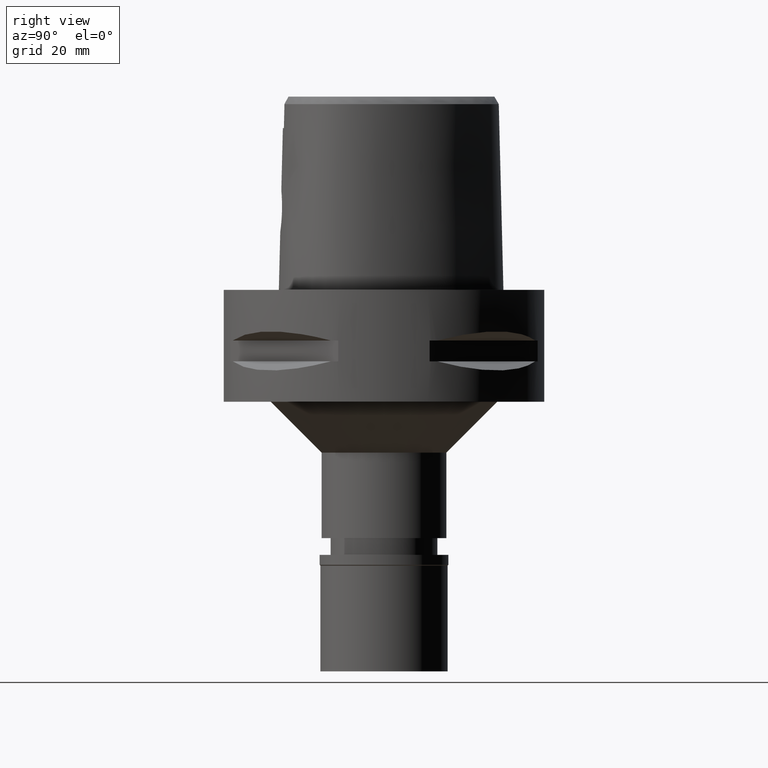
[diagram: clean part render]
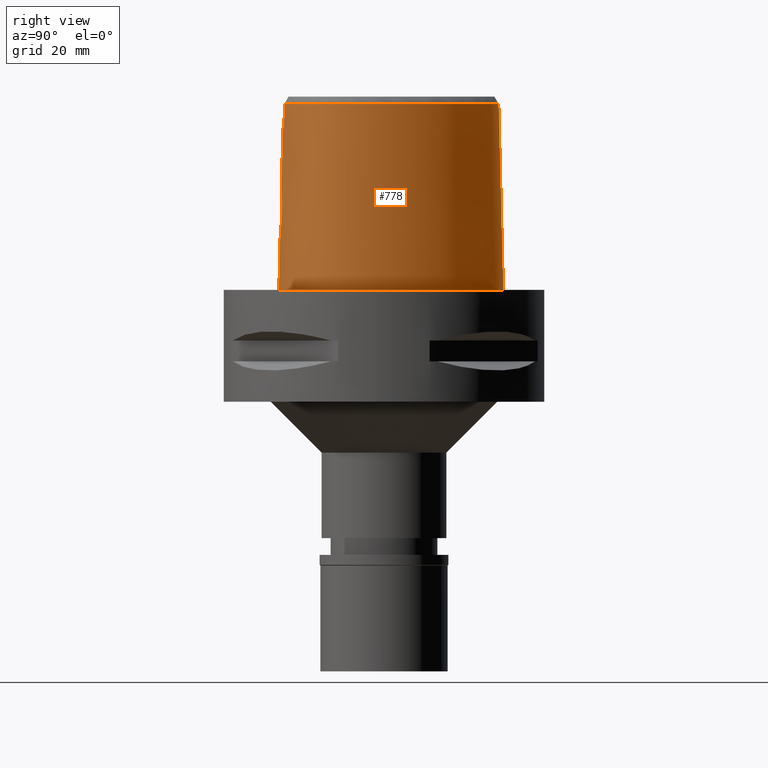
[diagram: same view with one face highlighted and labeled with its STEP entity id]
A machine part, right view. The second image highlights one B-rep face of the part: STEP entity #778.
In plain terms, the highlighted face is a freeform B-spline surface patch.
Its self-contained STEP definition (entity closure, byte-faithful):
#2 = CARTESIAN_POINT ( 'NONE',  ( 6.344715576767000265, -20.31619965005999973, -0.7304376953258999716 ) ) ;
#10 = CARTESIAN_POINT ( 'NONE',  ( 1.557939113252474250, -20.15943274952388009, 19.23835935338053815 ) ) ;
#28 = CARTESIAN_POINT ( 'NONE',  ( 16.38077687015999828, -14.94316453313000004, 37.25232246162000393 ) ) ;
#34 = CARTESIAN_POINT ( 'NONE',  ( 20.09619608768439392, -10.23243839429969526, 36.52186680739944080 ) ) ;
#52 = CARTESIAN_POINT ( 'NONE',  ( -1.460227875973999874E-11, 22.56201468012000078, 36.52186680743999858 ) ) ;
#73 = CARTESIAN_POINT ( 'NONE',  ( -0.4561077449807999784, -20.69106755660000019, -0.7304376953258999716 ) ) ;
#102 = CARTESIAN_POINT ( 'NONE',  ( 11.02138180927000022, -18.31230456260999873, 24.59140240929999877 ) ) ;
#109 = CARTESIAN_POINT ( 'NONE',  ( 3.637738219117000238, -19.56971420299000286, 36.52185956443999970 ) ) ;
#112 = B_SPLINE_CURVE_WITH_KNOTS ( 'NONE', 3,
 ( #2759, #2400, #151, #1654 ),
 .UNSPECIFIED., .F., .F.,
 ( 4, 4 ),
 ( 0.0000000000000000000, 1.000000000000000000 ),
 .UNSPECIFIED. ) ;
#122 = CARTESIAN_POINT ( 'NONE',  ( 19.15132523108999862, -12.46323150217999931, 24.59140240929999877 ) ) ;
#129 = CARTESIAN_POINT ( 'NONE',  ( 4.467522181837084716, -19.48130276147729845, 36.52186680739944080 ) ) ;
#136 = VERTEX_POINT ( 'NONE', #4514 ) ;
#151 = CARTESIAN_POINT ( 'NONE',  ( 3.671249151389730514, -19.60525176641679579, 34.94790639287000289 ) ) ;
#157 = CARTESIAN_POINT ( 'NONE',  ( 1.484600096012577142, -20.35045464633572720, 11.73184683410411999 ) ) ;
#163 = B_SPLINE_CURVE_WITH_KNOTS ( 'NONE', 3,
 ( #52, #3427, #1163, #4579, #1190, #3373, #4170, #2299, #3773, #1579, #815, #1978, #3790, #34, #3842, #1949, #420, #3456, #1921, #499, #442, #129, #109 ),
 .UNSPECIFIED., .F., .F.,
 ( 4, 1, 1, 1, 1, 1, 1, 1, 1, 1, 1, 1, 1, 1, 1, 1, 1, 1, 1, 1, 4 ),
 ( 0.0000000000000000000, 0.04382683003322416365, 0.08765366006602745563, 0.1314804900989360870, 0.1753073201318447183, 0.2629609801974513994, 0.3506146402631634684, 0.4382683003288753709, 0.5259219603945873844, 0.5697487904274959325, 0.6135756204601940933, 0.6574024504931027524, 0.6793158655095044018, 0.7012292805260113004, 0.7231426955424129499, 0.7450561105588145994, 0.7888829405916181203, 0.8327097706245266684, 0.8765366006573300783, 0.9641902607230630196, 1.000000000000000000 ),
 .UNSPECIFIED. ) ;
#181 = EDGE_LOOP ( 'NONE', ( #3538, #3285, #2152, #941, #504, #2780, #1633, #1586 ) ) ;
#222 = CARTESIAN_POINT ( 'NONE',  ( 0.5088194012091731278, -20.38532945290524268, 11.47346778294853387 ) ) ;
#249 = CARTESIAN_POINT ( 'NONE',  ( 1.428692070689411064, -20.35332336958851229, 11.71009346828414088 ) ) ;
#271 = CARTESIAN_POINT ( 'NONE',  ( 7.420053136274999517, 21.05635745033000106, 11.93048235699000159 ) ) ;
#275 = CARTESIAN_POINT ( 'NONE',  ( 3.015809322517585933, -20.08990163912825011, 18.20349211806708567 ) ) ;
#293 = CARTESIAN_POINT ( 'NONE',  ( 5.105252916250999640, 22.54305024276000324, -0.7304376953258999716 ) ) ;
#296 = CARTESIAN_POINT ( 'NONE',  ( 2.929181525109338491, -20.09491214275074711, 18.29697834040602800 ) ) ;
#317 = CARTESIAN_POINT ( 'NONE',  ( 21.99640701633999740, -0.2778990161574000362, -0.7304376953258999716 ) ) ;
#320 = CARTESIAN_POINT ( 'NONE',  ( 4.050935686876551145, -20.04627205849230975, 15.73951138876112843 ) ) ;
#328 = EDGE_CURVE ( 'NONE', #136, #913, #4197, .T. ) ;
#342 = CARTESIAN_POINT ( 'NONE',  ( -0.4685451965069000191, 23.16976073971000005, 11.93048235699000159 ) ) ;
#345 = CARTESIAN_POINT ( 'NONE',  ( 0.4958974861579462656, -20.18628283969000492, 19.55000000000000071 ) ) ;
#356 = CARTESIAN_POINT ( 'NONE',  ( 18.56841065047636619, -14.16937988191942743, 5.135697691226702444E-08 ) ) ;
#362 = CARTESIAN_POINT ( 'NONE',  ( -0.6840631436367000662, -20.68668116430000126, -0.7304376953258999716 ) ) ;
#365 = CARTESIAN_POINT ( 'NONE',  ( 21.44619295098000222, -6.759806553437999632, 24.59140240929999877 ) ) ;
#368 = CARTESIAN_POINT ( 'NONE',  ( 2.904942417684661216, -20.09630691081018483, 18.32205322623401855 ) ) ;
#386 = CARTESIAN_POINT ( 'NONE',  ( 14.21104795738999904, -16.40237698741999850, 37.25232246162000393 ) ) ;
#406 = CARTESIAN_POINT ( 'NONE',  ( 10.74572890976351580, 19.17433593650829593, 5.135697691226702444E-08 ) ) ;
#420 = CARTESIAN_POINT ( 'NONE',  ( 17.90324024157302318, -13.53935104435921843, 36.52186680739944080 ) ) ;
#429 = DIRECTION ( 'NONE',  ( 2.246877879688959938E-12, 0.02499051290944955331, -0.9996876883629820520 ) ) ;
#434 = CARTESIAN_POINT ( 'NONE',  ( 6.232237581529000536, -19.68961178150000180, 24.59140240929999877 ) ) ;
#442 = CARTESIAN_POINT ( 'NONE',  ( 7.300578979384798828, -19.07170738131011589, 36.52186680739944080 ) ) ;
#465 = CARTESIAN_POINT ( 'NONE',  ( -0.6718836836686000735, -20.05378850681999836, 24.59140240929999877 ) ) ;
#473 = CARTESIAN_POINT ( 'NONE',  ( -1.826892150965000023E-12, -20.38876923348000147, 11.44999999999999929 ) ) ;
#492 = CARTESIAN_POINT ( 'NONE',  ( 19.40779768883000145, -12.64961927457000179, 11.93048235699000159 ) ) ;
#499 = CARTESIAN_POINT ( 'NONE',  ( 10.91891095221506625, -18.03046396093020576, 36.52186680739944080 ) ) ;
#504 = ORIENTED_EDGE ( 'NONE', *, *, #1228, .T. ) ;
#572 = CARTESIAN_POINT ( 'NONE',  ( 1.026261138469873435, -20.37071038546249468, 11.57986899346372489 ) ) ;
#621 = CARTESIAN_POINT ( 'NONE',  ( 2.841460078676028900, -20.24471727788639441, 12.61406340613760335 ) ) ;
#631 = EDGE_CURVE ( 'NONE', #901, #3017, #112, .T. ) ;
#642 = CARTESIAN_POINT ( 'NONE',  ( 14.17879758744999918, 15.44741195459000060, 11.93048235699000159 ) ) ;
#645 = CARTESIAN_POINT ( 'NONE',  ( 3.139830787395406997, -20.08266621005894947, 18.05916603676346810 ) ) ;
#665 = CARTESIAN_POINT ( 'NONE',  ( 7.580410840355000346, 21.33037926323999756, -0.7304376953258999716 ) ) ;
#668 = CARTESIAN_POINT ( 'NONE',  ( 4.047740518681369970, -20.05617978811941526, 15.36123182186297598 ) ) ;
#689 = CARTESIAN_POINT ( 'NONE',  ( 22.07548129151000182, -6.850245535541000130, -0.7304376953258999716 ) ) ;
#692 = CARTESIAN_POINT ( 'NONE',  ( 3.865156686570976774, -20.04312372711440560, 16.71143719688340212 ) ) ;
#703 = CARTESIAN_POINT ( 'NONE',  ( 21.97832647659740246, -0.2810937502246462771, 5.135697691226702444E-08 ) ) ;
#714 = CARTESIAN_POINT ( 'NONE',  ( 4.987110667480000537, 22.24795280576000067, 11.93048235699000159 ) ) ;
#717 = CARTESIAN_POINT ( 'NONE',  ( 1.559195749211667481, -20.15938971546183112, 19.23783485783959790 ) ) ;
#737 = CARTESIAN_POINT ( 'NONE',  ( 2.373090302915000116, 22.37624340105999821, 37.25232246162000393 ) ) ;
#740 = CARTESIAN_POINT ( 'NONE',  ( 4.044187948281894762, -20.05896612332343310, 15.26787681282638154 ) ) ;
#750 = CARTESIAN_POINT ( 'NONE',  ( 7.571159433699917507, 21.31457031138365821, 5.135697691226702444E-08 ) ) ;
#778 = ADVANCED_FACE ( 'NONE', ( #4570 ), #2118, .T. ) ;
#789 = VERTEX_POINT ( 'NONE', #1918 ) ;
#800 = CARTESIAN_POINT ( 'NONE',  ( -1.465426168665000322E-11, -20.67499999999999716, 1.614634352146999882E-13 ) ) ;
#815 = CARTESIAN_POINT ( 'NONE',  ( 21.32871516739782436, -4.105831245034658572, 36.52186680739944080 ) ) ;
#859 = CARTESIAN_POINT ( 'NONE',  ( -0.6779734136527000299, -20.37023483556000159, 11.93048235699000159 ) ) ;
#901 = VERTEX_POINT ( 'NONE', #3042 ) ;
#913 = VERTEX_POINT ( 'NONE', #4573 ) ;
#941 = ORIENTED_EDGE ( 'NONE', *, *, #4528, .T. ) ;
#956 = CARTESIAN_POINT ( 'NONE',  ( 2.041042029990999821E-08, -19.88004246002000031, 31.80000004972000127 ) ) ;
#961 = CARTESIAN_POINT ( 'NONE',  ( 1.943612297387321997, -20.32333583516805930, 11.93698920895282534 ) ) ;
#985 = VERTEX_POINT ( 'NONE', #1210 ) ;
#1007 = CARTESIAN_POINT ( 'NONE',  ( 13.69241972168999943, 15.03666385820999984, 37.25232246162000393 ) ) ;
#1011 = CARTESIAN_POINT ( 'NONE',  ( 2.894451003923534937, -20.09690977045361038, 18.33278634657026629 ) ) ;
#1028 = CARTESIAN_POINT ( 'NONE',  ( 6.838580005282262249E-09, -20.08420636276266080, 23.63333344114145262 ) ) ;
#1032 = CARTESIAN_POINT ( 'NONE',  ( 21.05621901581999822, -0.4440251759740000415, 37.25232246162000393 ) ) ;
#1035 = CARTESIAN_POINT ( 'NONE',  ( 2.976701638823386009, -20.09217022439938205, 18.24671788373807502 ) ) ;
#1057 = CARTESIAN_POINT ( 'NONE',  ( 0.5826623285267998886, 22.88447438859000016, 24.59140240929999877 ) ) ;
#1060 = CARTESIAN_POINT ( 'NONE',  ( 3.724716690411025155, -20.12893075005228738, 13.90968743133232799 ) ) ;
#1084 = CARTESIAN_POINT ( 'NONE',  ( -0.7217521647947000574, 23.47150798736000255, -0.7304376953258999716 ) ) ;
#1087 = CARTESIAN_POINT ( 'NONE',  ( 3.752083122851463060, -20.04764660390417319, 17.02460302106401002 ) ) ;
#1101 = CARTESIAN_POINT ( 'NONE',  ( 16.95889172513586374, -15.67838867086331689, 5.135697691226702444E-08 ) ) ;
#1114 = CARTESIAN_POINT ( 'NONE',  ( 20.65879048599000001, -10.48283619594000093, 11.93048235699000159 ) ) ;
#1118 = CARTESIAN_POINT ( 'NONE',  ( 4.018848667660456009, -20.06918780048200546, 14.98264281957172983 ) ) ;
#1135 = CARTESIAN_POINT ( 'NONE',  ( 14.52531263339000134, -16.95413748289999845, 11.93048235699000159 ) ) ;
#1155 = CARTESIAN_POINT ( 'NONE',  ( 18.35112154401999973, -13.96357036105000127, 11.93048235699000159 ) ) ;
#1163 = CARTESIAN_POINT ( 'NONE',  ( 2.376843874103930165, 22.39422497744534368, 36.52186680739944080 ) ) ;
#1172 = CARTESIAN_POINT ( 'NONE',  ( 19.64947365759254794, -12.82525390549856859, 5.135697691226702444E-08 ) ) ;
#1182 = CARTESIAN_POINT ( 'NONE',  ( 1.853272120661999978, -20.08023982638000149, 24.59140240929999877 ) ) ;
#1190 = CARTESIAN_POINT ( 'NONE',  ( 7.108589361577216437, 20.52412316395074754, 36.52186680739944080 ) ) ;
#1210 = CARTESIAN_POINT ( 'NONE',  ( -1.460227875973999874E-11, 22.56201468012000078, 36.52186680743999858 ) ) ;
#1228 = EDGE_CURVE ( 'NONE', #3952, #913, #4308, .T. ) ;
#1305 = CARTESIAN_POINT ( 'NONE',  ( 2.711791320131215155, -20.25803635496028932, 12.49164859880961664 ) ) ;
#1355 = CARTESIAN_POINT ( 'NONE',  ( 1.316523112233209725, -20.35877864659380521, 11.66889111551424207 ) ) ;
#1372 = CARTESIAN_POINT ( 'NONE',  ( 1.251533272179339074, -19.88005341395440340, 31.80000012137776366 ) ) ;
#1374 = CARTESIAN_POINT ( 'NONE',  ( 19.86834423242000369, 4.339653639428999732, 37.25232246162000393 ) ) ;
#1377 = CARTESIAN_POINT ( 'NONE',  ( 3.544994964175448349, -20.15795294049681274, 13.53710759049855383 ) ) ;
#1399 = CARTESIAN_POINT ( 'NONE',  ( 13.93560865457000020, 15.24203790640000022, 24.59140240929999877 ) ) ;
#1402 = CARTESIAN_POINT ( 'NONE',  ( 3.732599178393122941, -20.12760500723543444, 13.92830998903148831 ) ) ;
#1425 = CARTESIAN_POINT ( 'NONE',  ( 10.34823237411000107, 18.70095498661000022, 24.59140240929999877 ) ) ;
#1428 = CARTESIAN_POINT ( 'NONE',  ( 3.923960199845195618, -20.09321833020934633, 14.46295565146353468 ) ) ;
#1448 = CARTESIAN_POINT ( 'NONE',  ( -0.4431573386675999870, 22.53713869259999925, 37.25232246162000393 ) ) ;
#1451 = CARTESIAN_POINT ( 'NONE',  ( 1.605671776516130356, -20.15775421328887163, 19.21817041167748741 ) ) ;
#1474 = CARTESIAN_POINT ( 'NONE',  ( 20.94844325901999937, -10.61175397014000055, -0.7304376953258999716 ) ) ;
#1477 = CARTESIAN_POINT ( 'NONE',  ( 1.721412882530819477, -20.15335215172747496, 19.16626726365454658 ) ) ;
#1490 = CARTESIAN_POINT ( 'NONE',  ( 0.8548392422175726812, 23.47499999872164267, 5.135697691226702444E-08 ) ) ;
#1498 = CARTESIAN_POINT ( 'NONE',  ( 11.23887130265999978, -18.91049776050999753, -0.7304376953258999716 ) ) ;
#1542 = CARTESIAN_POINT ( 'NONE',  ( 1.836480379348999881, -19.76356514168000089, 37.25232246162000393 ) ) ;
#1571 = CARTESIAN_POINT ( 'NONE',  ( -0.4520500670316000003, -20.37458447240999604, 11.93048235699000159 ) ) ;
#1579 = CARTESIAN_POINT ( 'NONE',  ( 21.07429999882822358, -0.4408303635841037127, 36.52186680739944080 ) ) ;
#1586 = ORIENTED_EDGE ( 'NONE', *, *, #2941, .T. ) ;
#1588 = VERTEX_POINT ( 'NONE', #2110 ) ;
#1618 = CARTESIAN_POINT ( 'NONE',  ( 18.89485277333999846, -12.27684372977999949, 37.25232246162000393 ) ) ;
#1633 = ORIENTED_EDGE ( 'NONE', *, *, #4279, .T. ) ;
#1654 = CARTESIAN_POINT ( 'NONE',  ( 3.637738219117000238, -19.56971420299000286, 36.52185956443999970 ) ) ;
#1660 = CARTESIAN_POINT ( 'NONE',  ( 3.341912992929565007, -20.18695542744487881, 13.19698867199501358 ) ) ;
#1677 = CARTESIAN_POINT ( 'NONE',  ( 2.503154195450333575, -19.81241979350992111, 31.80000012137776366 ) ) ;
#1721 = EDGE_CURVE ( 'NONE', #985, #1588, #3010, .T. ) ;
#1735 = CARTESIAN_POINT ( 'NONE',  ( 0.8967038885107518897, -20.37501011118094851, 11.54832164064055711 ) ) ;
#1754 = CARTESIAN_POINT ( 'NONE',  ( 2.830694381300589146, -20.24585591113536154, 12.60347686470297113 ) ) ;
#1771 = CARTESIAN_POINT ( 'NONE',  ( 20.76670354951000164, 4.663413654129000108, -0.7304376953258999716 ) ) ;
#1776 = CARTESIAN_POINT ( 'NONE',  ( 3.275595844979712457, -20.07468027508929254, 17.88630353667561579 ) ) ;
#1801 = CARTESIAN_POINT ( 'NONE',  ( 20.07948493991999683, -10.22500064753999993, 37.25232246162000393 ) ) ;
#1804 = CARTESIAN_POINT ( 'NONE',  ( 3.660592331360752016, -20.13964008335165801, 13.76655275318076832 ) ) ;
#1826 = CARTESIAN_POINT ( 'NONE',  ( 21.68301101616999915, -0.3332744027628999905, 11.93048235699000159 ) ) ;
#1829 = CARTESIAN_POINT ( 'NONE',  ( 3.678754489530061900, -20.13663629864518256, 13.80567093418468438 ) ) ;
#1839 = CARTESIAN_POINT ( 'NONE',  ( 20.34961798445451109, -11.74885742122339316, 5.135697691226702444E-08 ) ) ;
#1848 = CARTESIAN_POINT ( 'NONE',  ( -0.6642815283362000223, 22.52377638503999790, 37.25232246162000393 ) ) ;
#1851 = CARTESIAN_POINT ( 'NONE',  ( 0.0000000000000000000, -20.18628283968999781, 19.55000000000000071 ) ) ;
#1872 = CARTESIAN_POINT ( 'NONE',  ( 7.259695432194000375, 20.78233563741999745, 24.59140240929999877 ) ) ;
#1875 = CARTESIAN_POINT ( 'NONE',  ( 1.030795819457523077, -20.17735605646594621, 19.45770389105411624 ) ) ;
#1893 = CARTESIAN_POINT ( 'NONE',  ( 16.97022731134000040, -15.69280483145999838, -0.7304376953258999716 ) ) ;
#1918 = CARTESIAN_POINT ( 'NONE',  ( -1.465426168665000322E-11, -20.67499999999999716, 1.614634352146999882E-13 ) ) ;
#1921 = CARTESIAN_POINT ( 'NONE',  ( 14.22011350746682723, -16.41829354688145415, 36.52186680739944080 ) ) ;
#1949 = CARTESIAN_POINT ( 'NONE',  ( 18.90964962508071423, -12.28759713487729144, 36.52186680739944080 ) ) ;
#1978 = CARTESIAN_POINT ( 'NONE',  ( 21.14970177531156281, -6.717195943319091533, 36.52186680739944080 ) ) ;
#1993 = CARTESIAN_POINT ( 'NONE',  ( 19.66427014657999806, -12.83600704696999983, -0.7304376953258999716 ) ) ;
#2022 = CARTESIAN_POINT ( 'NONE',  ( 1.524455730134998577, -20.34834845256582625, 11.74785280492325867 ) ) ;
#2049 = CARTESIAN_POINT ( 'NONE',  ( 1.534414383146393668, -20.34781404291336671, 11.75191861418637274 ) ) ;
#2095 = CARTESIAN_POINT ( 'NONE',  ( 2.567105706069032323, -20.27199546737797675, 12.36665073144778049 ) ) ;
#2110 = CARTESIAN_POINT ( 'NONE',  ( 6.748353224885000348E-11, 23.47499999998000320, 1.585398479164999957E-13 ) ) ;
#2118 = B_SPLINE_SURFACE_WITH_KNOTS ( 'NONE', 3, 3, ( 
 ( #362, #859, #465, #2265 ),
 ( #73, #1571, #4549, #3340 ),
 ( #3740, #2702, #1182, #1542 ),
 ( #2, #3810, #434, #3448 ),
 ( #1498, #2996, #102, #4480 ),
 ( #4111, #1135, #2631, #386 ),
 ( #1893, #4135, #3363, #28 ),
 ( #4503, #1155, #2652, #3767 ),
 ( #1993, #492, #122, #1618 ),
 ( #3473, #3835, #4739, #3995 ),
 ( #1474, #1114, #2511, #1801 ),
 ( #4433, #3673, #2895, #3276 ),
 ( #689, #2245, #365, #4070 ),
 ( #2870, #2943, #3641, #2223 ),
 ( #317, #1826, #2557, #1032 ),
 ( #1771, #4018, #3343, #1374 ),
 ( #2970, #3247, #4460, #4792 ),
 ( #4357, #642, #1399, #1007 ),
 ( #2534, #3717, #1425, #4767 ),
 ( #665, #271, #1872, #3303 ),
 ( #293, #714, #2611, #4388 ),
 ( #2148, #2171, #2922, #737 ),
 ( #3621, #4410, #1057, #4814 ),
 ( #4043, #342, #2198, #1448 ),
 ( #1084, #2585, #3697, #1848 ) ),
 .UNSPECIFIED., .F., .F., .F.,
 ( 4, 1, 1, 1, 1, 1, 1, 1, 1, 1, 1, 1, 1, 1, 1, 1, 1, 1, 1, 1, 1, 1, 4 ),
 ( 4, 4 ),
 ( -0.008985960173611999210, 0.0000000000000000000, 0.08333333333348000305, 0.1666666666668000230, 0.2083333333334000115, 0.2500000000000999756, 0.2916666666666999919, 0.3125000000000000000, 0.3333333333333000081, 0.3541666666666999919, 0.3750000000000000000, 0.4166666666666999919, 0.4583333333332000326, 0.4999999999998999689, 0.5833333333332000326, 0.6666666666664999852, 0.7499999999998000488, 0.8333333333329999704, 0.8749999999997000177, 0.9166666666664000651, 0.9583333333329999704, 1.000000000000000000, 1.011710456763000199 ),
 ( 7.889347543311000566E-10, 0.9999999597644000371 ),
 .UNSPECIFIED. ) ;
#2126 = CARTESIAN_POINT ( 'NONE',  ( 2.848634169731659949, -20.24395646212686017, 12.62114453826856675 ) ) ;
#2148 = CARTESIAN_POINT ( 'NONE',  ( 2.568271205858999817, 23.31126238428999997, -0.7304376953258999716 ) ) ;
#2151 = CARTESIAN_POINT ( 'NONE',  ( 3.091912503272282731, -20.08547330919747154, 18.11695989290010900 ) ) ;
#2152 = ORIENTED_EDGE ( 'NONE', *, *, #631, .F. ) ;
#2171 = CARTESIAN_POINT ( 'NONE',  ( 2.503210904877999798, 22.99958938988000057, 11.93048235699000159 ) ) ;
#2174 = CARTESIAN_POINT ( 'NONE',  ( 3.953566082083136646, -20.04132947758212424, 16.38840305079423842 ) ) ;
#2198 = CARTESIAN_POINT ( 'NONE',  ( -0.4558512675872999909, 22.85344971616000009, 24.59140240929999877 ) ) ;
#2201 = CARTESIAN_POINT ( 'NONE',  ( 3.355444910124029789, -20.06993680170409888, 17.77178236428730074 ) ) ;
#2223 = CARTESIAN_POINT ( 'NONE',  ( 21.31039822982999965, -4.105938497624999073, 37.25232246162000393 ) ) ;
#2226 = CARTESIAN_POINT ( 'NONE',  ( 1.557535525044284164, -20.15944641042677432, 19.23852696888300429 ) ) ;
#2245 = CARTESIAN_POINT ( 'NONE',  ( 21.76083712123999803, -6.805026044489000725, 11.93048235699000159 ) ) ;
#2248 = CARTESIAN_POINT ( 'NONE',  ( 3.734400381291266946, -20.12730257852663485, 13.93259620650329289 ) ) ;
#2265 = CARTESIAN_POINT ( 'NONE',  ( -0.6657939536845999262, -19.73734217807999869, 37.25232246162000393 ) ) ;
#2284 = CARTESIAN_POINT ( 'NONE',  ( 2.564517726692342237, 23.29328124873286043, 5.135697691226702444E-08 ) ) ;
#2299 = CARTESIAN_POINT ( 'NONE',  ( 17.27359236348637239, 9.972912859140263819, 36.52186680739944080 ) ) ;
#2400 = CARTESIAN_POINT ( 'NONE',  ( 3.704239288984441103, -19.64128042389065598, 33.37395322129999897 ) ) ;
#2422 = CARTESIAN_POINT ( 'NONE',  ( 0.2513573066389295785, -20.38876923348000503, 11.44999999999999929 ) ) ;
#2466 = CARTESIAN_POINT ( 'NONE',  ( 2.625033160019424550, -20.26654445039574171, 12.41492914558983784 ) ) ;
#2511 = CARTESIAN_POINT ( 'NONE',  ( 20.36913771296000064, -10.35391842174000132, 24.59140240929999877 ) ) ;
#2514 = CARTESIAN_POINT ( 'NONE',  ( 1.850295227407130483, -20.14814960587365889, 19.10388948418050958 ) ) ;
#2534 = CARTESIAN_POINT ( 'NONE',  ( 10.75753573841000055, 19.18839675782000143, -0.7304376953258999716 ) ) ;
#2537 = CARTESIAN_POINT ( 'NONE',  ( 2.885016170103423150, -20.09745162937022300, 18.34239778287680522 ) ) ;
#2557 = CARTESIAN_POINT ( 'NONE',  ( 21.36961501599000002, -0.3886497893685000316, 24.59140240929999877 ) ) ;
#2561 = CARTESIAN_POINT ( 'NONE',  ( 3.730029111443177836, -20.12803691389691352, 13.92221415624707070 ) ) ;
#2573 = CARTESIAN_POINT ( 'NONE',  ( 21.55524825886331897, -8.996025390258079568, 5.135697691226702444E-08 ) ) ;
#2579 = VECTOR ( 'NONE', #429, 1000.000000000000114 ) ;
#2585 = CARTESIAN_POINT ( 'NONE',  ( -0.7025952859751999346, 23.15559745324999952, 11.93048235699000159 ) ) ;
#2590 = CARTESIAN_POINT ( 'NONE',  ( 3.671130029102330106, -20.05144378412945017, 17.22291848811974191 ) ) ;
#2601 = CARTESIAN_POINT ( 'NONE',  ( 20.74942740758185522, 4.657187499562394528, 5.135697691226702444E-08 ) ) ;
#2611 = CARTESIAN_POINT ( 'NONE',  ( 4.868968418709999746, 21.95285536876000165, 24.59140240929999877 ) ) ;
#2614 = CARTESIAN_POINT ( 'NONE',  ( 1.561698752818786673, -20.15930405764053290, 19.23679043682765055 ) ) ;
#2625 = CARTESIAN_POINT ( 'NONE',  ( 20.93173252093949444, -10.60431640572091183, 5.135697691226702444E-08 ) ) ;
#2631 = CARTESIAN_POINT ( 'NONE',  ( 14.36818029538999753, -16.67825723516000025, 24.59140240929999877 ) ) ;
#2644 = CARTESIAN_POINT ( 'NONE',  ( 22.05732874194889703, -6.847636718566112890, 5.135697691226702444E-08 ) ) ;
#2652 = CARTESIAN_POINT ( 'NONE',  ( 18.12052902189000037, -13.74516025631999838, 24.59140240929999877 ) ) ;
#2695 = CARTESIAN_POINT ( 'NONE',  ( 3.637738219117000238, -19.56971420299000286, 36.52185956443999970 ) ) ;
#2702 = CARTESIAN_POINT ( 'NONE',  ( 1.870063861976000164, -20.39691451107999853, 11.93048235699000159 ) ) ;
#2708 = LINE ( 'NONE', #473, #3203 ) ;
#2731 = DIRECTION ( 'NONE',  ( -1.119944401649976206E-12, -0.02499051295360945474, -0.9996876883618780463 ) ) ;
#2759 = CARTESIAN_POINT ( 'NONE',  ( 3.736696120837999402, -19.67778323291999953, 31.80000004972999861 ) ) ;
#2780 = ORIENTED_EDGE ( 'NONE', *, *, #328, .F. ) ;
#2799 = CARTESIAN_POINT ( 'NONE',  ( 3.146981493131018937, -20.21214630072181606, 12.91782296338082503 ) ) ;
#2827 = CARTESIAN_POINT ( 'NONE',  ( 1.219888367607791846, -20.36297087916927495, 11.63749988624461551 ) ) ;
#2850 = CARTESIAN_POINT ( 'NONE',  ( 2.393917575651466567, -20.28768537840050001, 12.22993944697308955 ) ) ;
#2870 = CARTESIAN_POINT ( 'NONE',  ( 22.26285556578000069, -4.100361500045999641, -0.7304376953258999716 ) ) ;
#2895 = CARTESIAN_POINT ( 'NONE',  ( 20.96392245206000027, -8.820258299938000590, 24.59140240929999877 ) ) ;
#2899 = CARTESIAN_POINT ( 'NONE',  ( 4.000289566295384347, -20.07462230320722085, 14.85363358418894286 ) ) ;
#2922 = CARTESIAN_POINT ( 'NONE',  ( 2.438150603895999691, 22.68791639547000116, 24.59140240929999877 ) ) ;
#2925 = CARTESIAN_POINT ( 'NONE',  ( 3.834077486136162172, -20.04414187522266744, 16.80782366351499846 ) ) ;
#2933 = CARTESIAN_POINT ( 'NONE',  ( 2.113823672989116886, -20.67499999871530747, 5.135697691226701782E-08 ) ) ;
#2941 = EDGE_CURVE ( 'NONE', #789, #1588, #4431, .T. ) ;
#2943 = CARTESIAN_POINT ( 'NONE',  ( 21.94536978713000153, -4.102220499239000340, 11.93048235699000159 ) ) ;
#2946 = CARTESIAN_POINT ( 'NONE',  ( 1.567627685780637270, -20.15909988177358514, 19.23430949201607376 ) ) ;
#2970 = CARTESIAN_POINT ( 'NONE',  ( 18.08416038352000044, 10.44089487233000035, -0.7304376953258999716 ) ) ;
#2974 = CARTESIAN_POINT ( 'NONE',  ( 3.845444522124177311, -20.10867237331272861, 14.19749973826292511 ) ) ;
#2996 = CARTESIAN_POINT ( 'NONE',  ( 11.13012655596999956, -18.61140116155999635, 11.93048235699000159 ) ) ;
#3001 = CARTESIAN_POINT ( 'NONE',  ( 3.756062750127398875, -20.04746145753988174, 17.01478232585861150 ) ) ;
#3010 = LINE ( 'NONE', #4495, #2579 ) ;
#3017 = VERTEX_POINT ( 'NONE', #2695 ) ;
#3042 = CARTESIAN_POINT ( 'NONE',  ( 3.736696120837999402, -19.67778323291999953, 31.80000004972999861 ) ) ;
#3140 = CARTESIAN_POINT ( 'NONE',  ( 3.597825209726359219, -20.14974941534202202, 13.63794305781301297 ) ) ;
#3158 = CARTESIAN_POINT ( 'NONE',  ( 1.731200296250964721, -20.33718222400664644, 11.83284617220499868 ) ) ;
#3203 = VECTOR ( 'NONE', #2731, 1000.000000000000114 ) ;
#3247 = CARTESIAN_POINT ( 'NONE',  ( 17.80867308050000020, 10.28184208529000010, 11.93048235699000159 ) ) ;
#3250 = CARTESIAN_POINT ( 'NONE',  ( 2.887433726812897117, -20.09731281063892538, 18.33993865650162292 ) ) ;
#3276 = CARTESIAN_POINT ( 'NONE',  ( 20.65947748158999886, -8.729764352257999960, 37.25232246162000393 ) ) ;
#3279 = CARTESIAN_POINT ( 'NONE',  ( 3.734250394031335407, -20.12732772330093312, 13.93223759261133843 ) ) ;
#3285 = ORIENTED_EDGE ( 'NONE', *, *, #4386, .T. ) ;
#3303 = CARTESIAN_POINT ( 'NONE',  ( 7.099337728113000345, 20.50831382451999829, 37.25232246162000393 ) ) ;
#3306 = CARTESIAN_POINT ( 'NONE',  ( 1.952193352486152556, -20.14384105148241844, 19.05096958369085769 ) ) ;
#3340 = CARTESIAN_POINT ( 'NONE',  ( -0.4439347111331000129, -19.74161830402999840, 37.25232246162000393 ) ) ;
#3343 = CARTESIAN_POINT ( 'NONE',  ( 20.16779733810999886, 4.447573644328999265, 24.59140240929999877 ) ) ;
#3346 = CARTESIAN_POINT ( 'NONE',  ( 3.922253928823222768, -20.04162062339629813, 16.51808118182147211 ) ) ;
#3363 = CARTESIAN_POINT ( 'NONE',  ( 16.57726035055000224, -15.19304463256999860, 24.59140240929999877 ) ) ;
#3373 = CARTESIAN_POINT ( 'NONE',  ( 10.15538781006472568, 18.47129526702978097, 36.52186680739944080 ) ) ;
#3383 = CARTESIAN_POINT ( 'NONE',  ( 5.098437016804217237, 22.52602538942837285, 5.135697691226702444E-08 ) ) ;
#3427 = CARTESIAN_POINT ( 'NONE',  ( 0.7901461619532027525, 22.56201467849595943, 36.52186680739944080 ) ) ;
#3448 = CARTESIAN_POINT ( 'NONE',  ( 6.175998583908999251, -19.37631784722000106, 37.25232246162000393 ) ) ;
#3456 = CARTESIAN_POINT ( 'NONE',  ( 16.39211273426930759, -14.95758104715575953, 36.52186680739944080 ) ) ;
#3473 = CARTESIAN_POINT ( 'NONE',  ( 20.36546124547000147, -11.75800453227000020, -0.7304376953258999716 ) ) ;
#3504 = CARTESIAN_POINT ( 'NONE',  ( 3.736696120837999402, -19.67778323291999953, 31.80000004972999861 ) ) ;
#3538 = ORIENTED_EDGE ( 'NONE', *, *, #1721, .F. ) ;
#3601 = CARTESIAN_POINT ( 'NONE',  ( 2.851253964450473521, -20.24367816152786048, 12.62373645160493041 ) ) ;
#3621 = CARTESIAN_POINT ( 'NONE',  ( 0.6155340740610000250, 23.51883497794000277, -0.7304376953258999716 ) ) ;
#3641 = CARTESIAN_POINT ( 'NONE',  ( 21.62788400848000236, -4.104079498432000150, 24.59140240929999877 ) ) ;
#3646 = CARTESIAN_POINT ( 'NONE',  ( 3.771863757606935152, -20.04674008542534480, 16.97514508251149223 ) ) ;
#3673 = CARTESIAN_POINT ( 'NONE',  ( 21.26836742253999901, -8.910752247618999533, 11.93048235699000159 ) ) ;
#3676 = CARTESIAN_POINT ( 'NONE',  ( 2.297755920018795361, -20.12839481684266829, 18.84583221503610417 ) ) ;
#3697 = CARTESIAN_POINT ( 'NONE',  ( -0.6834384071556999229, 22.83968691915000093, 24.59140240929999877 ) ) ;
#3700 = CARTESIAN_POINT ( 'NONE',  ( 2.583789702646355657, -20.11473656512810138, 18.64714698924000302 ) ) ;
#3717 = CARTESIAN_POINT ( 'NONE',  ( 10.55288405625999815, 18.94467587221999949, 11.93048235699000159 ) ) ;
#3720 = CARTESIAN_POINT ( 'NONE',  ( 3.733682330659281678, -20.12742312111254250, 13.93088651991677018 ) ) ;
#3740 = CARTESIAN_POINT ( 'NONE',  ( 1.886855603288999816, -20.71358919579000002, -0.7304376953258999716 ) ) ;
#3761 = CARTESIAN_POINT ( 'NONE',  ( 11.23259756683292032, -18.89324218628041052, 5.135697691226702444E-08 ) ) ;
#3767 = CARTESIAN_POINT ( 'NONE',  ( 17.88993649975000011, -13.52675015159000083, 37.25232246162000393 ) ) ;
#3773 = CARTESIAN_POINT ( 'NONE',  ( 19.88562079789245018, 4.345879946637082547, 36.52186680739944080 ) ) ;
#3780 = CARTESIAN_POINT ( 'NONE',  ( 22.24453907726235968, -4.100468750006982077, 5.135697691226702444E-08 ) ) ;
#3790 = CARTESIAN_POINT ( 'NONE',  ( 20.67704204634200593, -8.734985285293076274, 36.52186680739944080 ) ) ;
#3810 = CARTESIAN_POINT ( 'NONE',  ( 6.288476579147999956, -20.00290571578000254, 11.93048235699000159 ) ) ;
#3835 = CARTESIAN_POINT ( 'NONE',  ( 20.09084474050999702, -11.59945461861000027, 11.93048235699000159 ) ) ;
#3842 = CARTESIAN_POINT ( 'NONE',  ( 19.55745538001160000, -11.29150212657875407, 36.52186680739944080 ) ) ;
#3952 = VERTEX_POINT ( 'NONE', #4393 ) ;
#3956 = B_SPLINE_CURVE_WITH_KNOTS ( 'NONE', 3,
 ( #3504, #1677, #1372, #956 ),
 .UNSPECIFIED., .F., .F.,
 ( 4, 4 ),
 ( 0.0000000000000000000, 1.000000000000000000 ),
 .UNSPECIFIED. ) ;
#3967 = CARTESIAN_POINT ( 'NONE',  ( 2.755136405269366318, -20.25369941475203817, 12.53108343084308984 ) ) ;
#3995 = CARTESIAN_POINT ( 'NONE',  ( 19.54161173058000145, -11.28235479128000129, 37.25232246162000393 ) ) ;
#3998 = CARTESIAN_POINT ( 'NONE',  ( 3.713390859012929646, -20.13083851369266242, 13.88329915021605032 ) ) ;
#4018 = CARTESIAN_POINT ( 'NONE',  ( 20.46725044381000203, 4.555493649229000575, 11.93048235699000159 ) ) ;
#4021 = CARTESIAN_POINT ( 'NONE',  ( 1.682422135876106895, -20.15487628605658443, 19.18421058273812818 ) ) ;
#4036 = CARTESIAN_POINT ( 'NONE',  ( 2.041042029990999821E-08, -19.88004246002000031, 31.80000004972000127 ) ) ;
#4043 = CARTESIAN_POINT ( 'NONE',  ( -0.4812391254265999674, 23.48607176326000001, -0.7304376953258999716 ) ) ;
#4046 = CARTESIAN_POINT ( 'NONE',  ( 4.049389806598701291, -20.05441775293450135, 15.42317482149113239 ) ) ;
#4060 = CARTESIAN_POINT ( 'NONE',  ( 14.67337964356030788, -17.21410156138208691, 5.135697691226702444E-08 ) ) ;
#4070 = CARTESIAN_POINT ( 'NONE',  ( 21.13154878071999931, -6.714587062386000227, 37.25232246162000393 ) ) ;
#4074 = CARTESIAN_POINT ( 'NONE',  ( 1.579839260423698155, -20.15867429957068779, 19.22917027861514327 ) ) ;
#4085 = CARTESIAN_POINT ( 'NONE',  ( 18.06826688415138449, 10.43171874935559451, 5.135697691226702444E-08 ) ) ;
#4111 = CARTESIAN_POINT ( 'NONE',  ( 14.68244497138999982, -17.23001773064000020, -0.7304376953258999716 ) ) ;
#4135 = CARTESIAN_POINT ( 'NONE',  ( 16.77374383094999999, -15.44292473201999982, 11.93048235699000159 ) ) ;
#4154 = CARTESIAN_POINT ( 'NONE',  ( 14.40795638859102645, 15.64093749916673559, 5.135697691226702444E-08 ) ) ;
#4170 = CARTESIAN_POINT ( 'NONE',  ( 13.70645019738465820, 15.04851265230321111, 36.52186680739944080 ) ) ;
#4197 = B_SPLINE_CURVE_WITH_KNOTS ( 'NONE', 3,
 ( #4670, #2422, #222, #1735, #572, #2827, #1355, #249, #157, #4312, #2022, #2049, #3158, #961, #4644, #2850, #2095, #2466, #1305, #3967, #4721, #1754, #621, #2126, #3601, #2799, #1660, #1377, #3140, #1804, #1829, #4771, #3998, #1060, #2561, #1402, #3720, #2248, #3279, #2974, #1428, #2899, #1118, #4436, #740, #668, #4046, #4818, #320, #4464, #2174, #3346, #692, #2925, #4391, #3646, #4742, #3001, #1087, #2590, #4413, #2201, #1776, #645, #2151, #275, #1035, #296, #368, #1011, #3250, #2537, #3700, #3676, #3306, #2514, #1477, #4021, #4795, #1451, #4074, #2946, #2614, #717, #2226, #10, #1875, #345, #1851 ),
 .UNSPECIFIED., .F., .F.,
 ( 4, 2, 2, 1, 1, 1, 2, 2, 2, 2, 2, 1, 1, 1, 2, 2, 2, 2, 2, 1, 1, 1, 1, 2, 2, 2, 2, 1, 2, 2, 2, 2, 1, 1, 1, 2, 2, 2, 2, 2, 1, 1, 1, 2, 2, 2, 2, 2, 1, 1, 1, 1, 2, 2, 4 ),
 ( 0.0000000000000000000, 0.06249999999998741285, 0.09374999999998116784, 0.1093749999999780592, 0.1171874999999766020, 0.1210937499999758804, 0.1230468749999754641, 0.1249999999999750477, 0.1874999999999601707, 0.2187499999999527323, 0.2343749999999490963, 0.2421874999999474309, 0.2460937499999465428, 0.2480468749999459876, 0.2490234374999457378, 0.2499999999999454880, 0.3124999999999332201, 0.3437499999999271694, 0.3593749999999240607, 0.3671874999999225619, 0.3710937499999215072, 0.3730468749999208966, 0.3740234374999206746, 0.3745117187499206191, 0.3749999999999206191, 0.4374999999999436007, 0.4687499999999548694, 0.4843749999999605316, 0.4921874999999635292, 0.4999999999999665823, 0.5624999999999940048, 0.5937500000000076605, 0.6093750000000142109, 0.6171875000000173195, 0.6210937500000185407, 0.6230468750000188738, 0.6250000000000190958, 0.6875000000000184297, 0.7187500000000179856, 0.7343750000000178746, 0.7421875000000177636, 0.7460937500000179856, 0.7480468750000179856, 0.7490234375000177636, 0.7500000000000175415, 0.8125000000000123235, 0.8437500000000097700, 0.8593750000000083267, 0.8671875000000073275, 0.8710937500000071054, 0.8730468750000069944, 0.8740234375000069944, 0.8745117187500068834, 0.8750000000000067724, 1.000000000000000000 ),
 .UNSPECIFIED. ) ;
#4279 = EDGE_CURVE ( 'NONE', #136, #789, #2708, .T. ) ;
#4308 = B_SPLINE_CURVE_WITH_KNOTS ( 'NONE', 3,
 ( #4036, #4810, #1028, #4788 ),
 .UNSPECIFIED., .F., .F.,
 ( 4, 4 ),
 ( 0.0000000000000000000, 1.000000000000000000 ),
 .UNSPECIFIED. ) ;
#4312 = CARTESIAN_POINT ( 'NONE',  ( 1.508519244432795281, -20.34919496106665804, 11.74141735013853882 ) ) ;
#4357 = CARTESIAN_POINT ( 'NONE',  ( 14.42198652031999906, 15.65278600277999743, -0.7304376953258999716 ) ) ;
#4386 = EDGE_CURVE ( 'NONE', #985, #3017, #163, .T. ) ;
#4388 = CARTESIAN_POINT ( 'NONE',  ( 4.750826169938999755, 21.65775793176000263, 37.25232246162000393 ) ) ;
#4391 = CARTESIAN_POINT ( 'NONE',  ( 3.793348982609824560, -20.04579625811842902, 16.91951837462272579 ) ) ;
#4393 = CARTESIAN_POINT ( 'NONE',  ( 2.041042029990999821E-08, -19.88004246002000031, 31.80000004972000127 ) ) ;
#4410 = CARTESIAN_POINT ( 'NONE',  ( 0.5990982012939000123, 23.20165468325999925, 11.93048235699000159 ) ) ;
#4413 = CARTESIAN_POINT ( 'NONE',  ( 3.567125359327655065, -20.05744783133229348, 17.43601118103637759 ) ) ;
#4424 = CARTESIAN_POINT ( 'NONE',  ( 6.748353224885000348E-11, 23.47499999998000320, 1.585398479164999957E-13 ) ) ;
#4431 = B_SPLINE_CURVE_WITH_KNOTS ( 'NONE', 3,
 ( #800, #2933, #4449, #3761, #4060, #1101, #356, #1172, #1839, #2625, #2573, #2644, #3780, #703, #2601, #4085, #4154, #406, #750, #3383, #2284, #1490, #4424 ),
 .UNSPECIFIED., .F., .F.,
 ( 4, 1, 1, 1, 1, 1, 1, 1, 1, 1, 1, 1, 1, 1, 1, 1, 1, 1, 1, 1, 4 ),
 ( 0.0000000000000000000, 0.08333333333348000305, 0.1666666666668000230, 0.2083333333334000115, 0.2500000000000999756, 0.2916666666666999919, 0.3125000000000000000, 0.3333333333333000081, 0.3541666666666999919, 0.3750000000000000000, 0.4166666666666999919, 0.4583333333332000326, 0.4999999999998999689, 0.5833333333332000326, 0.6666666666664999852, 0.7499999999998000488, 0.8333333333329999704, 0.8749999999997000177, 0.9166666666664000651, 0.9583333333329999704, 1.000000000000000000 ),
 .UNSPECIFIED. ) ;
#4433 = CARTESIAN_POINT ( 'NONE',  ( 21.57281239301000042, -9.001246195299000163, -0.7304376953258999716 ) ) ;
#4436 = CARTESIAN_POINT ( 'NONE',  ( 4.037304503967685143, -20.06218230580742201, 15.17327670932963990 ) ) ;
#4449 = CARTESIAN_POINT ( 'NONE',  ( 6.341471018983853902, -20.29812499873458265, 5.135697691226703106E-08 ) ) ;
#4460 = CARTESIAN_POINT ( 'NONE',  ( 17.53318577749000440, 10.12278929824999985, 24.59140240929999877 ) ) ;
#4464 = CARTESIAN_POINT ( 'NONE',  ( 4.027790566325648136, -20.04258881013328519, 15.99918146805843655 ) ) ;
#4480 = CARTESIAN_POINT ( 'NONE',  ( 10.91263706258000177, -18.01320796365999755, 37.25232246162000393 ) ) ;
#4495 = CARTESIAN_POINT ( 'NONE',  ( -1.460227875973999874E-11, 22.56201468012000078, 36.52186680743999858 ) ) ;
#4503 = CARTESIAN_POINT ( 'NONE',  ( 18.58171406615000265, -14.18198046577000149, -0.7304376953258999716 ) ) ;
#4514 = CARTESIAN_POINT ( 'NONE',  ( -1.826892150965000023E-12, -20.38876923348000147, 11.44999999999999929 ) ) ;
#4528 = EDGE_CURVE ( 'NONE', #901, #3952, #3956, .T. ) ;
#4549 = CARTESIAN_POINT ( 'NONE',  ( -0.4479923890824000221, -20.05810138821999900, 24.59140240929999877 ) ) ;
#4570 = FACE_OUTER_BOUND ( 'NONE', #181, .T. ) ;
#4573 = CARTESIAN_POINT ( 'NONE',  ( 0.0000000000000000000, -20.18628283968999781, 19.55000000000000071 ) ) ;
#4579 = CARTESIAN_POINT ( 'NONE',  ( 4.757642236485543741, 21.67478320247586865, 36.52186680739944080 ) ) ;
#4644 = CARTESIAN_POINT ( 'NONE',  ( 2.279280750636067054, -20.29726113251657438, 12.14963838896480475 ) ) ;
#4670 = CARTESIAN_POINT ( 'NONE',  ( -1.826892150965000023E-12, -20.38876923348000147, 11.44999999999999929 ) ) ;
#4721 = CARTESIAN_POINT ( 'NONE',  ( 2.805544196527666845, -20.24849458931732116, 12.57902034976086725 ) ) ;
#4739 = CARTESIAN_POINT ( 'NONE',  ( 19.81622823553999879, -11.44090470494000122, 24.59140240929999877 ) ) ;
#4742 = CARTESIAN_POINT ( 'NONE',  ( 3.762415247913715177, -20.04716957624095386, 16.99893441480760004 ) ) ;
#4767 = CARTESIAN_POINT ( 'NONE',  ( 10.14358069196000045, 18.45723410100000095, 37.25232246162000393 ) ) ;
#4771 = CARTESIAN_POINT ( 'NONE',  ( 3.702439546624397781, -20.13267961052092758, 13.85841150163392754 ) ) ;
#4788 = CARTESIAN_POINT ( 'NONE',  ( 0.0000000000000000000, -20.18628283968999781, 19.55000000000000071 ) ) ;
#4792 = CARTESIAN_POINT ( 'NONE',  ( 17.25769847447000060, 9.963736511202000656, 37.25232246162000393 ) ) ;
#4795 = CARTESIAN_POINT ( 'NONE',  ( 1.630210575120109917, -20.15684741611699238, 19.20746226495671394 ) ) ;
#4810 = CARTESIAN_POINT ( 'NONE',  ( 6.818608974630676651E-09, -19.98212988583404126, 27.71666688228311060 ) ) ;
#4814 = CARTESIAN_POINT ( 'NONE',  ( 0.5662264557595999559, 22.56729409391000374, 37.25232246162000393 ) ) ;
#4818 = CARTESIAN_POINT ( 'NONE',  ( 4.049850394048514879, -20.05361486788673986, 15.45281354515043404 ) ) ;